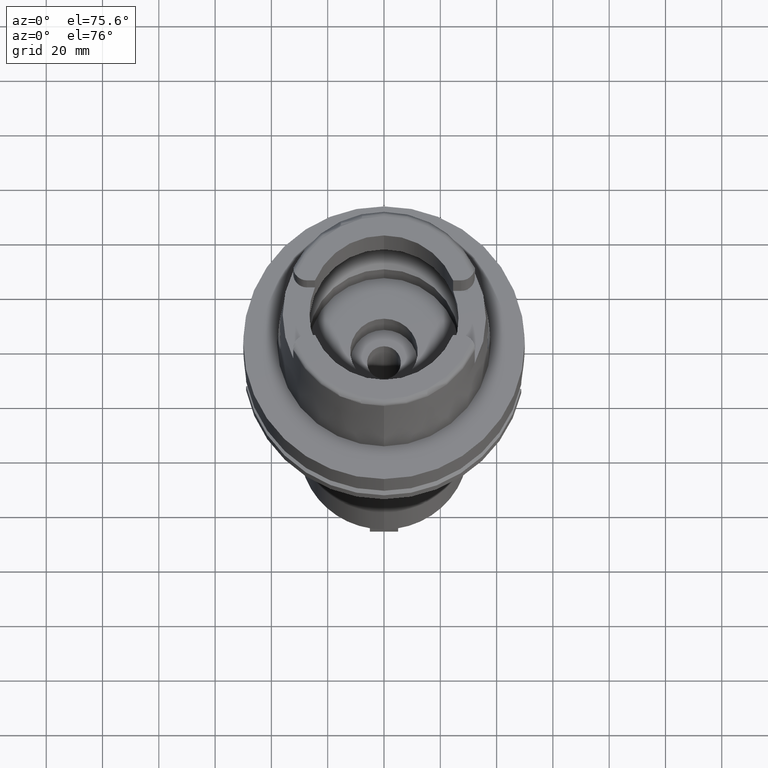
[diagram: clean part render]
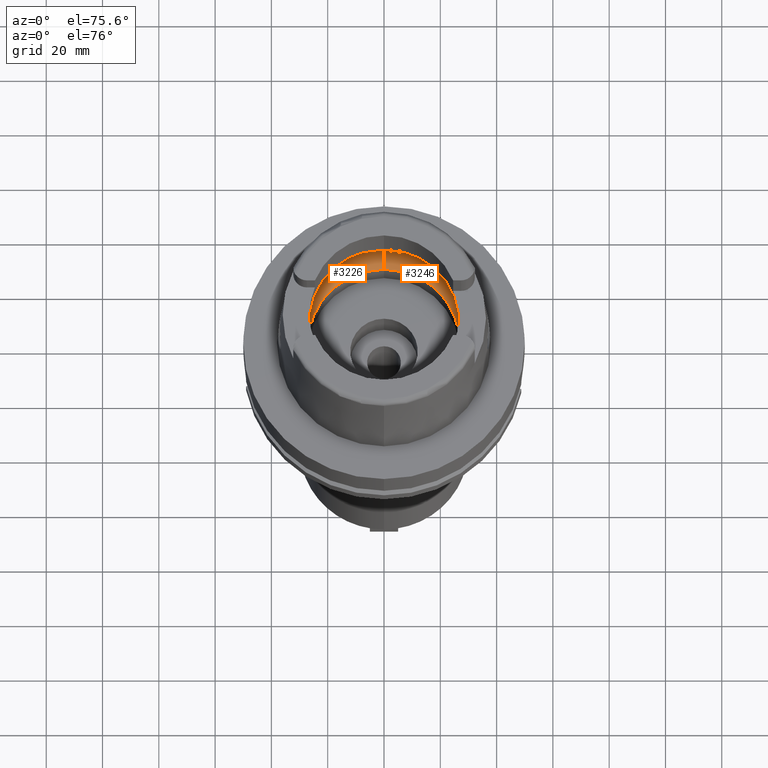
[diagram: same view with one multi-face feature highlighted, each face labeled with its STEP entity id]
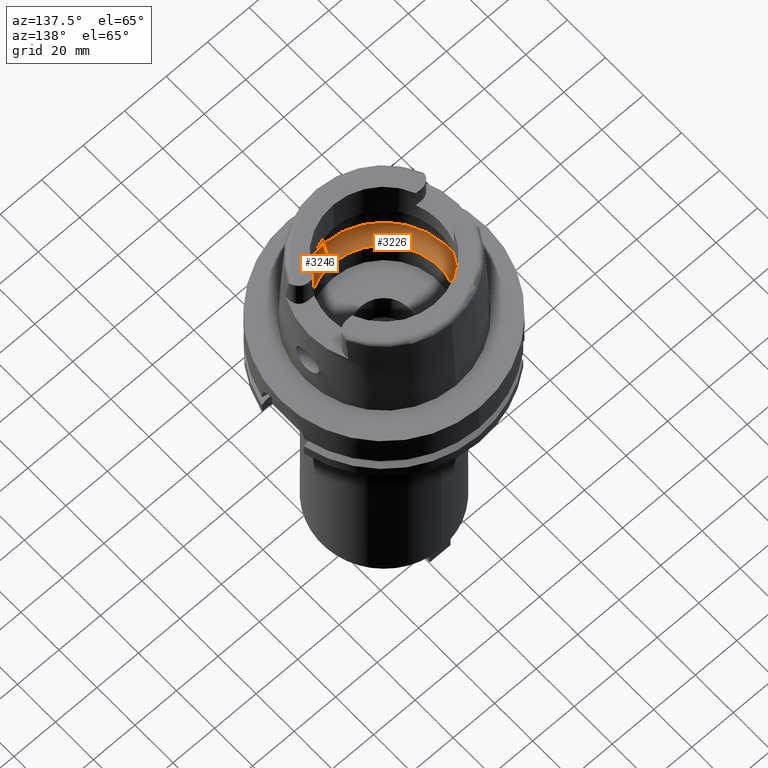
[diagram: same view with one multi-face feature highlighted, each face labeled with its STEP entity id]
A machine part, auxiliary view. The highlighted faces form ONE feature: a constant-radius fillet chain: 2 tangent blend faces with common blend radius 12 mm. The faces share edges in the B-rep.
A second angle (auxiliary view) of the same feature is appended — it is thin or edge-on in the first view.
Their STEP definitions:
[1] entity #3246 (Torus):
#660=CARTESIAN_POINT('',(0.E0,-1.95E1,9.496624327026E0));
#661=DIRECTION('',(-1.E0,0.E0,0.E0));
#662=DIRECTION('',(0.E0,-6.166666666667E-1,-7.872243785746E-1));
#663=AXIS2_PLACEMENT_3D('',#660,#661,#662);
#676=CARTESIAN_POINT('',(3.148971910754E1,0.E0,9.E0));
#677=CARTESIAN_POINT('',(3.148971910754E1,-2.740816369241E-1,9.E0));
#678=CARTESIAN_POINT('',(3.148416657244E1,-8.216274657312E-1,9.037606582852E0));
#679=CARTESIAN_POINT('',(3.145843229729E1,-1.626122314408E0,9.205188491873E0));
#680=CARTESIAN_POINT('',(3.142817542026E1,-2.140654635827E0,9.388263020288E0));
#681=CARTESIAN_POINT('',(3.140918884336E1,-2.390158196044E0,9.496624327026E0));
#686=CARTESIAN_POINT('',(0.E0,0.E0,9.496624327026E0));
#687=DIRECTION('',(0.E0,0.E0,-1.E0));
#688=DIRECTION('',(9.971171061384E-1,-7.587803796965E-2,0.E0));
#689=AXIS2_PLACEMENT_3D('',#686,#687,#688);
#694=CARTESIAN_POINT('',(0.E0,0.E0,4.993178413044E-2));
#695=DIRECTION('',(0.E0,0.E0,1.E0));
#696=DIRECTION('',(0.E0,-1.E0,0.E0));
#697=AXIS2_PLACEMENT_3D('',#694,#695,#696);
#702=CARTESIAN_POINT('',(0.E0,1.95E1,9.496624327026E0));
#703=DIRECTION('',(1.E0,0.E0,0.E0));
#704=DIRECTION('',(0.E0,6.166666666667E-1,-7.872243785746E-1));
#705=AXIS2_PLACEMENT_3D('',#702,#703,#704);
#710=CARTESIAN_POINT('',(0.E0,0.E0,9.496624327026E0));
#711=DIRECTION('',(0.E0,0.E0,-1.E0));
#712=DIRECTION('',(0.E0,1.E0,0.E0));
#713=AXIS2_PLACEMENT_3D('',#710,#711,#712);
#718=CARTESIAN_POINT('',(3.140918884336E1,2.390158196044E0,9.496624327026E0));
#719=CARTESIAN_POINT('',(3.142817530553E1,2.140656143518E0,9.388263675090E0));
#720=CARTESIAN_POINT('',(3.145843215351E1,1.626125992770E0,9.205189397203E0));
#721=CARTESIAN_POINT('',(3.148416663622E1,8.216256622719E-1,9.037606172252E0));
#722=CARTESIAN_POINT('',(3.148971910754E1,2.740808193429E-1,9.E0));
#723=CARTESIAN_POINT('',(3.148971910754E1,0.E0,9.E0));
#735=CARTESIAN_POINT('',(3.140918884336E1,-2.390158196044E0,9.496624327026E0));
#766=CARTESIAN_POINT('',(3.140918884336E1,2.390158196044E0,9.496624327026E0));
#2541=CARTESIAN_POINT('',(0.E0,-3.15E1,9.496624327026E0));
#2542=VERTEX_POINT('',#2541);
#2543=CARTESIAN_POINT('',(0.E0,3.15E1,9.496624327026E0));
#2544=VERTEX_POINT('',#2543);
#2549=VERTEX_POINT('',#735);
#2551=VERTEX_POINT('',#676);
#2552=VERTEX_POINT('',#766);
#2553=CARTESIAN_POINT('',(0.E0,2.69E1,4.993178413044E-2));
#2554=VERTEX_POINT('',#2553);
#2555=CARTESIAN_POINT('',(0.E0,-2.69E1,4.993178413044E-2));
#2556=VERTEX_POINT('',#2555);
#3227=CARTESIAN_POINT('',(0.E0,0.E0,9.496624327026E0));
#3228=DIRECTION('',(0.E0,0.E0,1.E0));
#3229=DIRECTION('',(0.E0,1.E0,0.E0));
#3230=AXIS2_PLACEMENT_3D('',#3227,#3228,#3229);
#3231=TOROIDAL_SURFACE('',#3230,1.95E1,1.2E1);
#3233=ORIENTED_EDGE('',*,*,#3232,.T.);
#3235=ORIENTED_EDGE('',*,*,#3234,.T.);
#3236=ORIENTED_EDGE('',*,*,#3221,.F.);
#3238=ORIENTED_EDGE('',*,*,#3237,.T.);
#3239=ORIENTED_EDGE('',*,*,#3217,.T.);
#3241=ORIENTED_EDGE('',*,*,#3240,.T.);
#3243=ORIENTED_EDGE('',*,*,#3242,.T.);
#3244=EDGE_LOOP('',(#3233,#3235,#3236,#3238,#3239,#3241,#3243));
#3245=FACE_OUTER_BOUND('',#3244,.F.);
#664=CIRCLE('',#663,1.2E1);
#682=B_SPLINE_CURVE_WITH_KNOTS('',3,(#676,#677,#678,#679,#680,#681),
.UNSPECIFIED.,.F.,.F.,(4,1,1,4),(0.E0,3.333333333333E-1,6.666666666667E-1,1.E0),
.UNSPECIFIED.);
#690=CIRCLE('',#689,3.15E1);
#698=CIRCLE('',#697,2.69E1);
#706=CIRCLE('',#705,1.2E1);
#714=CIRCLE('',#713,3.15E1);
#724=B_SPLINE_CURVE_WITH_KNOTS('',3,(#718,#719,#720,#721,#722,#723),
.UNSPECIFIED.,.F.,.F.,(4,1,1,4),(0.E0,3.333333333333E-1,6.666666666667E-1,1.E0),
.UNSPECIFIED.);
#3217=EDGE_CURVE('',#2554,#2544,#706,.T.);
#3221=EDGE_CURVE('',#2556,#2542,#664,.T.);
#3232=EDGE_CURVE('',#2551,#2549,#682,.T.);
#3234=EDGE_CURVE('',#2549,#2542,#690,.T.);
#3237=EDGE_CURVE('',#2556,#2554,#698,.T.);
#3240=EDGE_CURVE('',#2544,#2552,#714,.T.);
#3242=EDGE_CURVE('',#2552,#2551,#724,.T.);
#3246=ADVANCED_FACE('',(#3245),#3231,.F.);
[2] entity #3226 (Torus):
#580=CARTESIAN_POINT('',(-3.140918884336E1,-2.390158196044E0,9.496624327026E0));
#624=CARTESIAN_POINT('',(-3.140918884336E1,-2.390158196044E0,9.496624327026E0));
#625=CARTESIAN_POINT('',(-3.142817545704E1,-2.140654152533E0,9.388262810390E0));
#626=CARTESIAN_POINT('',(-3.145843235401E1,-1.626121130666E0,9.205188134635E0));
#627=CARTESIAN_POINT('',(-3.148416659375E1,-8.216262390445E-1,
9.037606438216E0));
#628=CARTESIAN_POINT('',(-3.148971910754E1,-2.740811097498E-1,9.E0));
#629=CARTESIAN_POINT('',(-3.148971910754E1,0.E0,9.E0));
#634=CARTESIAN_POINT('',(-3.148971910754E1,0.E0,9.E0));
#635=CARTESIAN_POINT('',(-3.148971910754E1,2.740813517952E-1,9.E0));
#636=CARTESIAN_POINT('',(-3.148416661469E1,8.216269012394E-1,9.037606318337E0));
#637=CARTESIAN_POINT('',(-3.145843209623E1,1.626127188331E0,9.205189758010E0));
#638=CARTESIAN_POINT('',(-3.142817526839E1,2.140656631637E0,9.388263887083E0));
#639=CARTESIAN_POINT('',(-3.140918884336E1,2.390158196044E0,9.496624327026E0));
#644=CARTESIAN_POINT('',(0.E0,0.E0,9.496624327026E0));
#645=DIRECTION('',(0.E0,0.E0,-1.E0));
#646=DIRECTION('',(-9.971171061384E-1,7.587803796965E-2,0.E0));
#647=AXIS2_PLACEMENT_3D('',#644,#645,#646);
#652=CARTESIAN_POINT('',(0.E0,0.E0,4.993178413044E-2));
#653=DIRECTION('',(0.E0,0.E0,1.E0));
#654=DIRECTION('',(0.E0,1.E0,0.E0));
#655=AXIS2_PLACEMENT_3D('',#652,#653,#654);
#660=CARTESIAN_POINT('',(0.E0,-1.95E1,9.496624327026E0));
#661=DIRECTION('',(-1.E0,0.E0,0.E0));
#662=DIRECTION('',(0.E0,-6.166666666667E-1,-7.872243785746E-1));
#663=AXIS2_PLACEMENT_3D('',#660,#661,#662);
#668=CARTESIAN_POINT('',(0.E0,0.E0,9.496624327026E0));
#669=DIRECTION('',(0.E0,0.E0,-1.E0));
#670=DIRECTION('',(0.E0,-1.E0,0.E0));
#671=AXIS2_PLACEMENT_3D('',#668,#669,#670);
#702=CARTESIAN_POINT('',(0.E0,1.95E1,9.496624327026E0));
#703=DIRECTION('',(1.E0,0.E0,0.E0));
#704=DIRECTION('',(0.E0,6.166666666667E-1,-7.872243785746E-1));
#705=AXIS2_PLACEMENT_3D('',#702,#703,#704);
#2540=VERTEX_POINT('',#580);
#2541=CARTESIAN_POINT('',(0.E0,-3.15E1,9.496624327026E0));
#2542=VERTEX_POINT('',#2541);
#2543=CARTESIAN_POINT('',(0.E0,3.15E1,9.496624327026E0));
#2544=VERTEX_POINT('',#2543);
#2545=CARTESIAN_POINT('',(-3.140918884336E1,2.390158196044E0,9.496624327026E0));
#2546=VERTEX_POINT('',#2545);
#2547=CARTESIAN_POINT('',(-3.148971910754E1,0.E0,9.E0));
#2548=VERTEX_POINT('',#2547);
#2553=CARTESIAN_POINT('',(0.E0,2.69E1,4.993178413044E-2));
#2554=VERTEX_POINT('',#2553);
#2555=CARTESIAN_POINT('',(0.E0,-2.69E1,4.993178413044E-2));
#2556=VERTEX_POINT('',#2555);
#3209=CARTESIAN_POINT('',(0.E0,0.E0,9.496624327026E0));
#3210=DIRECTION('',(0.E0,0.E0,1.E0));
#3211=DIRECTION('',(0.E0,1.E0,0.E0));
#3212=AXIS2_PLACEMENT_3D('',#3209,#3210,#3211);
#3213=TOROIDAL_SURFACE('',#3212,1.95E1,1.2E1);
#3214=ORIENTED_EDGE('',*,*,#3190,.T.);
#3215=ORIENTED_EDGE('',*,*,#3201,.T.);
#3216=ORIENTED_EDGE('',*,*,#3172,.T.);
#3218=ORIENTED_EDGE('',*,*,#3217,.F.);
#3220=ORIENTED_EDGE('',*,*,#3219,.T.);
#3222=ORIENTED_EDGE('',*,*,#3221,.T.);
#3223=ORIENTED_EDGE('',*,*,#3165,.T.);
#3224=EDGE_LOOP('',(#3214,#3215,#3216,#3218,#3220,#3222,#3223));
#3225=FACE_OUTER_BOUND('',#3224,.F.);
#630=B_SPLINE_CURVE_WITH_KNOTS('',3,(#624,#625,#626,#627,#628,#629),
.UNSPECIFIED.,.F.,.F.,(4,1,1,4),(0.E0,3.333333333333E-1,6.666666666667E-1,1.E0),
.UNSPECIFIED.);
#640=B_SPLINE_CURVE_WITH_KNOTS('',3,(#634,#635,#636,#637,#638,#639),
.UNSPECIFIED.,.F.,.F.,(4,1,1,4),(0.E0,3.333333333333E-1,6.666666666667E-1,1.E0),
.UNSPECIFIED.);
#648=CIRCLE('',#647,3.15E1);
#656=CIRCLE('',#655,2.69E1);
#664=CIRCLE('',#663,1.2E1);
#672=CIRCLE('',#671,3.15E1);
#706=CIRCLE('',#705,1.2E1);
#3165=EDGE_CURVE('',#2542,#2540,#672,.T.);
#3172=EDGE_CURVE('',#2546,#2544,#648,.T.);
#3190=EDGE_CURVE('',#2540,#2548,#630,.T.);
#3201=EDGE_CURVE('',#2548,#2546,#640,.T.);
#3217=EDGE_CURVE('',#2554,#2544,#706,.T.);
#3219=EDGE_CURVE('',#2554,#2556,#656,.T.);
#3221=EDGE_CURVE('',#2556,#2542,#664,.T.);
#3226=ADVANCED_FACE('',(#3225),#3213,.F.);